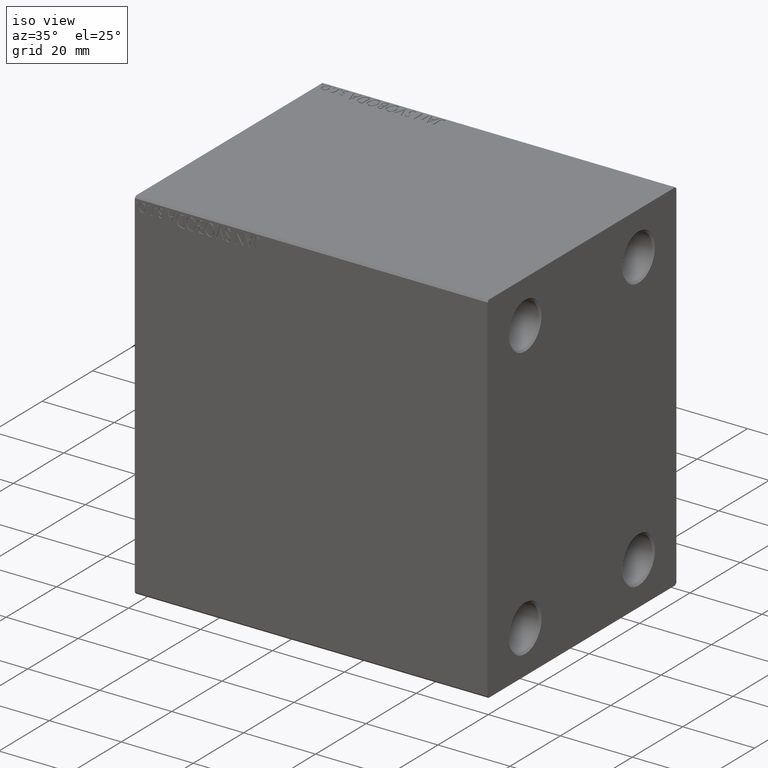
[diagram: clean part render]
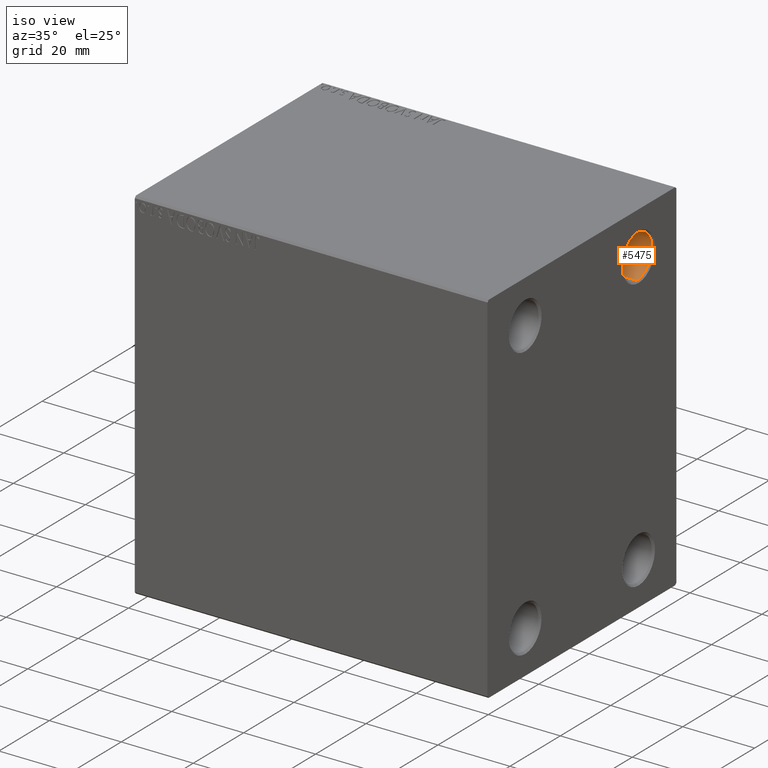
[diagram: same view with one face highlighted and labeled with its STEP entity id]
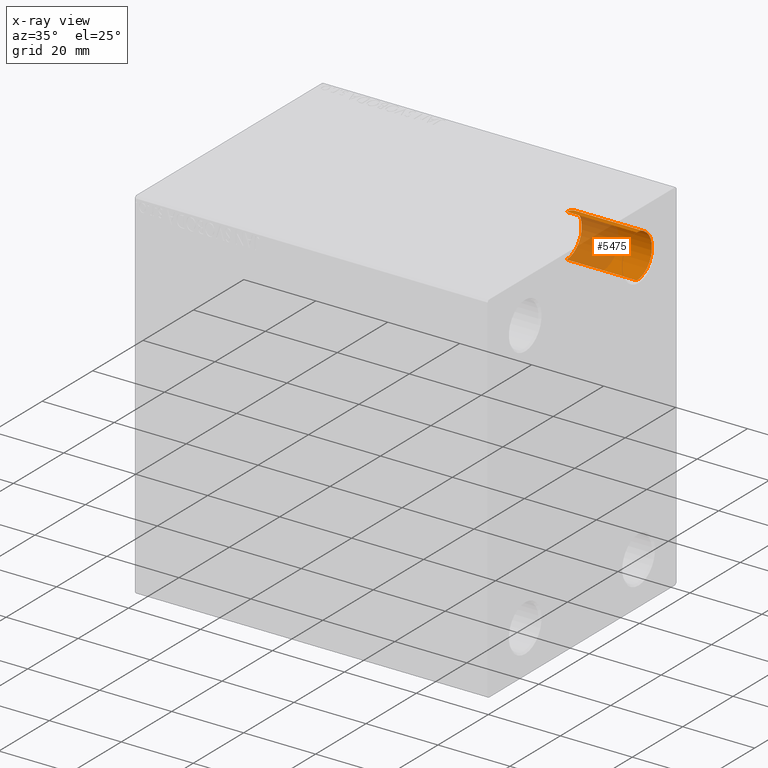
[diagram: x-ray of the same camera — body ghosted, the highlighted face saturated]
A machine part, iso view. The second image highlights one B-rep face of the part: STEP entity #5475.
The next image is the same camera in x-ray: the body ghosted, the highlighted face saturated — about 49% of this face is hidden behind the body in this view.
In plain terms, the highlighted cylindrical surface (edge-blend (fillet) strip) has radius 6 mm, axis along (1, 0, 0).
Its self-contained STEP definition (entity closure, byte-faithful):
#168 = EDGE_CURVE ( 'NONE', #22360, #15765, #29219, .T. ) ;
#1637 = EDGE_LOOP ( 'NONE', ( #39460, #31662, #18757, #17472 ) ) ;
#2632 = VECTOR ( 'NONE', #21695, 1000.000000000000000 ) ;
#4180 = LINE ( 'NONE', #7997, #2632 ) ;
#4840 = CARTESIAN_POINT ( 'NONE',  ( 97.50000000000001421, 22.50000000000000000, 31.99999999999999289 ) ) ;
#5475 = ADVANCED_FACE ( 'NONE', ( #41231 ), #31556, .F. ) ;
#6756 = EDGE_CURVE ( 'NONE', #22360, #40500, #39095, .T. ) ;
#7068 = CARTESIAN_POINT ( 'NONE',  ( 98.00000000000000000, 22.50000000000000000, 37.99999999999999289 ) ) ;
#7997 = CARTESIAN_POINT ( 'NONE',  ( 98.00000000000000000, 22.50000000000000000, 31.99999999999999289 ) ) ;
#11834 = CARTESIAN_POINT ( 'NONE',  ( 78.00000000000000000, 22.50000000000000000, 43.99999999999999289 ) ) ;
#11885 = CARTESIAN_POINT ( 'NONE',  ( 78.00000000000000000, 22.50000000000000000, 31.99999999999999289 ) ) ;
#15190 = VECTOR ( 'NONE', #22244, 1000.000000000000000 ) ;
#15765 = VERTEX_POINT ( 'NONE', #30108 ) ;
#16953 = DIRECTION ( 'NONE',  ( 0.000000000000000000, 0.000000000000000000, 1.000000000000000000 ) ) ;
#17052 = VERTEX_POINT ( 'NONE', #4840 ) ;
#17472 = ORIENTED_EDGE ( 'NONE', *, *, #168, .F. ) ;
#18757 = ORIENTED_EDGE ( 'NONE', *, *, #26388, .F. ) ;
#21066 = AXIS2_PLACEMENT_3D ( 'NONE', #7068, #38095, #37882 ) ;
#21695 = DIRECTION ( 'NONE',  ( 1.000000000000000000, -0.000000000000000000, -0.000000000000000000 ) ) ;
#22244 = DIRECTION ( 'NONE',  ( 1.000000000000000000, -0.000000000000000000, -0.000000000000000000 ) ) ;
#22360 = VERTEX_POINT ( 'NONE', #11834 ) ;
#26388 = EDGE_CURVE ( 'NONE', #15765, #17052, #36921, .T. ) ;
#27274 = DIRECTION ( 'NONE',  ( 0.000000000000000000, 0.000000000000000000, -1.000000000000000000 ) ) ;
#27488 = CARTESIAN_POINT ( 'NONE',  ( 97.50000000000001421, 22.50000000000000000, 37.99999999999999289 ) ) ;
#29219 = LINE ( 'NONE', #35748, #15190 ) ;
#30108 = CARTESIAN_POINT ( 'NONE',  ( 97.50000000000001421, 22.50000000000000000, 43.99999999999999289 ) ) ;
#31556 = CYLINDRICAL_SURFACE ( 'NONE', #21066, 5.999999999999998224 ) ;
#31662 = ORIENTED_EDGE ( 'NONE', *, *, #33419, .T. ) ;
#33419 = EDGE_CURVE ( 'NONE', #40500, #17052, #4180, .T. ) ;
#35748 = CARTESIAN_POINT ( 'NONE',  ( 98.00000000000000000, 22.50000000000000000, 43.99999999999999289 ) ) ;
#36919 = AXIS2_PLACEMENT_3D ( 'NONE', #44406, #40586, #16953 ) ;
#36921 = CIRCLE ( 'NONE', #40505, 5.999999999999998224 ) ;
#37188 = DIRECTION ( 'NONE',  ( -1.000000000000000000, 0.000000000000000000, 0.000000000000000000 ) ) ;
#37882 = DIRECTION ( 'NONE',  ( 0.000000000000000000, 0.000000000000000000, 1.000000000000000000 ) ) ;
#38095 = DIRECTION ( 'NONE',  ( 1.000000000000000000, -0.000000000000000000, -0.000000000000000000 ) ) ;
#39095 = CIRCLE ( 'NONE', #36919, 5.999999999999998224 ) ;
#39460 = ORIENTED_EDGE ( 'NONE', *, *, #6756, .T. ) ;
#40500 = VERTEX_POINT ( 'NONE', #11885 ) ;
#40505 = AXIS2_PLACEMENT_3D ( 'NONE', #27488, #37188, #27274 ) ;
#40586 = DIRECTION ( 'NONE',  ( -1.000000000000000000, 0.000000000000000000, 0.000000000000000000 ) ) ;
#41231 = FACE_OUTER_BOUND ( 'NONE', #1637, .T. ) ;
#44406 = CARTESIAN_POINT ( 'NONE',  ( 78.00000000000000000, 22.50000000000000000, 37.99999999999999289 ) ) ;